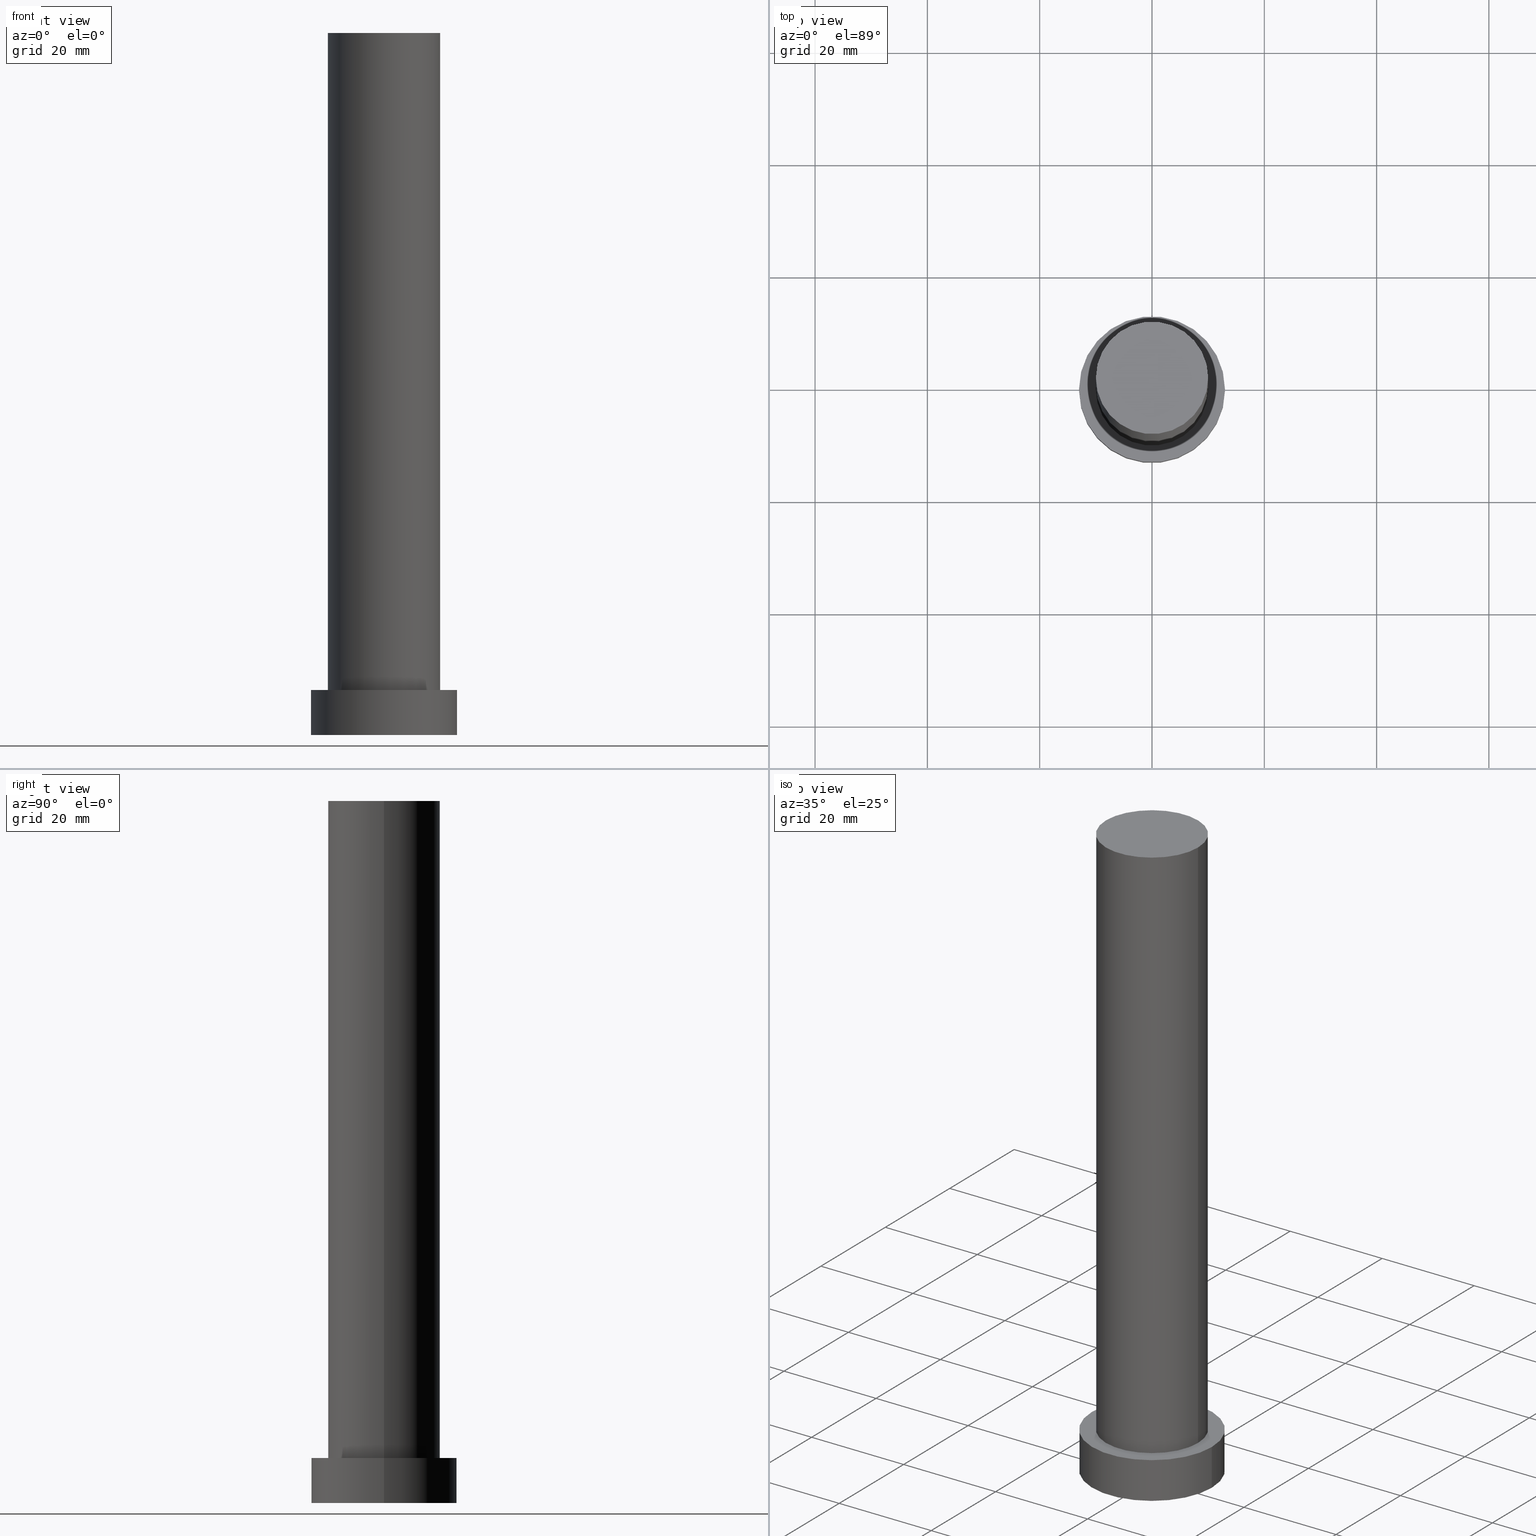
[diagram: canonical four-view strip — front | top / right | iso, engineering-drawing reading convention]
A machine part, canonical four-view strip (front | top / right | iso — engineering-drawing reading convention). The complete STEP part file that produces these views, byte-faithful:
ISO-10303-21;
HEADER;
FILE_DESCRIPTION (( 'STEP AP203' ),
    '1' );
FILE_NAME ('12a2.STEP',
    '2023-02-13T07:54:47',
    ( '' ),
    ( '' ),
    'SwSTEP 2.0',
    'SolidWorks 2019',
    '' );
FILE_SCHEMA (( 'CONFIG_CONTROL_DESIGN' ));
ENDSEC;

DATA;
#1 = DESIGN_CONTEXT ( 'detailed design', #151, 'design' ) ;
#2 = EDGE_LOOP ( 'NONE', ( #243, #43, #219, #7 ) ) ;
#3 = ORIENTED_EDGE ( 'NONE', *, *, #84, .F. ) ;
#4 = ADVANCED_FACE ( 'NONE', ( #33 ), #31, .T. ) ;
#5 = ORIENTED_EDGE ( 'NONE', *, *, #227, .F. ) ;
#6 = PERSON_AND_ORGANIZATION_ROLE ( 'design_owner' ) ;
#7 = ORIENTED_EDGE ( 'NONE', *, *, #84, .T. ) ;
#8 =( LENGTH_UNIT ( ) NAMED_UNIT ( * ) SI_UNIT ( .MILLI., .METRE. ) );
#9 = ORIENTED_EDGE ( 'NONE', *, *, #56, .T. ) ;
#10 = PRODUCT_DEFINITION_SHAPE ( 'NONE', 'NONE',  #107 ) ;
#11 = PERSON_AND_ORGANIZATION ( #209, #115 ) ;
#12 = FACE_OUTER_BOUND ( 'NONE', #187, .T. ) ;
#13 = CARTESIAN_POINT ( 'NONE',  ( 13.00000000000000178, 1.592040838891559293E-15, 0.000000000000000000 ) ) ;
#14 = DIRECTION ( 'NONE',  ( 0.000000000000000000, 0.000000000000000000, 1.000000000000000000 ) ) ;
#15 = PERSON_AND_ORGANIZATION ( #209, #115 ) ;
#16 = CC_DESIGN_PERSON_AND_ORGANIZATION_ASSIGNMENT ( #130, #109, ( #107 ) ) ;
#17 = DIRECTION ( 'NONE',  ( -0.000000000000000000, -0.000000000000000000, -1.000000000000000000 ) ) ;
#18 = PERSON_AND_ORGANIZATION ( #209, #115 ) ;
#19 = LINE ( 'NONE', #158, #231 ) ;
#20 = LOCAL_TIME ( 8, 54, 47.00000000000000000, #210 ) ;
#21 = AXIS2_PLACEMENT_3D ( 'NONE', #189, #32, #233 ) ;
#22 = EDGE_LOOP ( 'NONE', ( #238, #144, #9, #126 ) ) ;
#23 = AXIS2_PLACEMENT_3D ( 'NONE', #95, #14, #205 ) ;
#24 = ORIENTED_EDGE ( 'NONE', *, *, #117, .F. ) ;
#25 = ORIENTED_EDGE ( 'NONE', *, *, #227, .T. ) ;
#26 = CALENDAR_DATE ( 2023, 13, 2 ) ;
#27 = VERTEX_POINT ( 'NONE', #114 ) ;
#28 =( GEOMETRIC_REPRESENTATION_CONTEXT ( 3 ) GLOBAL_UNCERTAINTY_ASSIGNED_CONTEXT ( ( #103 ) ) GLOBAL_UNIT_ASSIGNED_CONTEXT ( ( #8, #172, #199 ) ) REPRESENTATION_CONTEXT ( 'NONE', 'WORKASPACE' ) );
#29 = CARTESIAN_POINT ( 'NONE',  ( 0.000000000000000000, 0.000000000000000000, 125.0000000000000000 ) ) ;
#30 = APPROVAL ( #190, 'NEUR�EN�' ) ;
#31 = CYLINDRICAL_SURFACE ( 'NONE', #170, 13.00000000000000178 ) ;
#32 = DIRECTION ( 'NONE',  ( 0.000000000000000000, 0.000000000000000000, 1.000000000000000000 ) ) ;
#33 = FACE_OUTER_BOUND ( 'NONE', #22, .T. ) ;
#34 = CC_DESIGN_APPROVAL ( #48, ( #122 ) ) ;
#35 = EDGE_CURVE ( 'NONE', #200, #111, #133, .T. ) ;
#36 = DIRECTION ( 'NONE',  ( 1.000000000000000000, 0.000000000000000000, 0.000000000000000000 ) ) ;
#37 = FACE_OUTER_BOUND ( 'NONE', #63, .T. ) ;
#38 = LINE ( 'NONE', #244, #179 ) ;
#39 = AXIS2_PLACEMENT_3D ( 'NONE', #97, #177, #254 ) ;
#40 = CIRCLE ( 'NONE', #248, 10.00000000000000000 ) ;
#41 = CC_DESIGN_DATE_AND_TIME_ASSIGNMENT ( #101, #161, ( #51 ) ) ;
#42 = VERTEX_POINT ( 'NONE', #169 ) ;
#43 = ORIENTED_EDGE ( 'NONE', *, *, #78, .F. ) ;
#44 = ADVANCED_BREP_SHAPE_REPRESENTATION ( '12a2', ( #79, #59 ), #28 ) ;
#45 = ORIENTED_EDGE ( 'NONE', *, *, #78, .T. ) ;
#46 = DATE_AND_TIME ( #221, #91 ) ;
#47 = CIRCLE ( 'NONE', #223, 13.00000000000000178 ) ;
#48 = APPROVAL ( #86, 'NEUR�EN�' ) ;
#49 = PERSON_AND_ORGANIZATION ( #209, #115 ) ;
#50 = DIRECTION ( 'NONE',  ( 0.000000000000000000, 0.000000000000000000, 1.000000000000000000 ) ) ;
#51 = SECURITY_CLASSIFICATION ( '', '', #156 ) ;
#52 = CALENDAR_DATE ( 2023, 13, 2 ) ;
#53 = CARTESIAN_POINT ( 'NONE',  ( 13.00000000000000178, 1.592040838891559293E-15, 8.000000000000000000 ) ) ;
#54 = DIRECTION ( 'NONE',  ( -1.000000000000000000, 0.000000000000000000, 0.000000000000000000 ) ) ;
#55 = FACE_BOUND ( 'NONE', #216, .T. ) ;
#56 = EDGE_CURVE ( 'NONE', #143, #42, #38, .T. ) ;
#57 = DIRECTION ( 'NONE',  ( 0.000000000000000000, 0.000000000000000000, 1.000000000000000000 ) ) ;
#58 = ORIENTED_EDGE ( 'NONE', *, *, #98, .T. ) ;
#59 = AXIS2_PLACEMENT_3D ( 'NONE', #112, #57, #137 ) ;
#60 = DIRECTION ( 'NONE',  ( 0.000000000000000000, 0.000000000000000000, 1.000000000000000000 ) ) ;
#61 = AXIS2_PLACEMENT_3D ( 'NONE', #191, #131, #175 ) ;
#62 = CC_DESIGN_DATE_AND_TIME_ASSIGNMENT ( #224, #184, ( #107 ) ) ;
#63 = EDGE_LOOP ( 'NONE', ( #162, #181 ) ) ;
#64 = VERTEX_POINT ( 'NONE', #204 ) ;
#65 = CC_DESIGN_SECURITY_CLASSIFICATION ( #51, ( #122 ) ) ;
#66 = CIRCLE ( 'NONE', #206, 10.00000000000000000 ) ;
#67 = ORIENTED_EDGE ( 'NONE', *, *, #194, .F. ) ;
#68 = APPLICATION_PROTOCOL_DEFINITION ( 'international standard', 'config_control_design', 1994, #151 ) ;
#69 = DIRECTION ( 'NONE',  ( -1.000000000000000000, 0.000000000000000000, 0.000000000000000000 ) ) ;
#70 = APPROVAL_ROLE ( '' ) ;
#71 = CARTESIAN_POINT ( 'NONE',  ( 0.000000000000000000, 0.000000000000000000, 8.000000000000000000 ) ) ;
#72 = DIRECTION ( 'NONE',  ( 1.000000000000000000, 0.000000000000000000, -0.000000000000000000 ) ) ;
#73 = DIRECTION ( 'NONE',  ( -0.000000000000000000, -0.000000000000000000, -1.000000000000000000 ) ) ;
#74 = LINE ( 'NONE', #157, #241 ) ;
#75 = APPROVAL_DATE_TIME ( #80, #30 ) ;
#76 = DIRECTION ( 'NONE',  ( -1.000000000000000000, 0.000000000000000000, 0.000000000000000000 ) ) ;
#77 = DIRECTION ( 'NONE',  ( -0.000000000000000000, -0.000000000000000000, -1.000000000000000000 ) ) ;
#78 = EDGE_CURVE ( 'NONE', #64, #218, #66, .T. ) ;
#79 = MANIFOLD_SOLID_BREP ( 'P�idat vysunut�m3', #141 ) ;
#80 = DATE_AND_TIME ( #94, #237 ) ;
#81 = ORIENTED_EDGE ( 'NONE', *, *, #35, .T. ) ;
#82 = CARTESIAN_POINT ( 'NONE',  ( 0.000000000000000000, 0.000000000000000000, 125.0000000000000000 ) ) ;
#83 = AXIS2_PLACEMENT_3D ( 'NONE', #90, #73, #76 ) ;
#84 = EDGE_CURVE ( 'NONE', #104, #27, #240, .T. ) ;
#85 = CARTESIAN_POINT ( 'NONE',  ( 13.00000000000000178, 1.592040838891559293E-15, 8.000000000000000000 ) ) ;
#86 = APPROVAL_STATUS ( 'not_yet_approved' ) ;
#87 = CYLINDRICAL_SURFACE ( 'NONE', #83, 10.00000000000000000 ) ;
#88 = PRODUCT_RELATED_PRODUCT_CATEGORY ( 'detail', '', ( #110 ) ) ;
#89 = DIRECTION ( 'NONE',  ( -0.000000000000000000, -0.000000000000000000, -1.000000000000000000 ) ) ;
#90 = CARTESIAN_POINT ( 'NONE',  ( 0.000000000000000000, 0.000000000000000000, 125.0000000000000000 ) ) ;
#91 = LOCAL_TIME ( 8, 54, 47.00000000000000000, #186 ) ;
#92 = VECTOR ( 'NONE', #202, 1000.000000000000000 ) ;
#93 = FACE_OUTER_BOUND ( 'NONE', #128, .T. ) ;
#94 = CALENDAR_DATE ( 2023, 13, 2 ) ;
#95 = CARTESIAN_POINT ( 'NONE',  ( 0.000000000000000000, 0.000000000000000000, 0.000000000000000000 ) ) ;
#96 = COORDINATED_UNIVERSAL_TIME_OFFSET ( 1, 0, .AHEAD. ) ;
#97 = CARTESIAN_POINT ( 'NONE',  ( 0.000000000000000000, 0.000000000000000000, 0.000000000000000000 ) ) ;
#98 = EDGE_CURVE ( 'NONE', #218, #64, #40, .T. ) ;
#99 = SHAPE_DEFINITION_REPRESENTATION ( #10, #44 ) ;
#100 = ADVANCED_FACE ( 'NONE', ( #12 ), #192, .F. ) ;
#101 = DATE_AND_TIME ( #255, #20 ) ;
#102 = CIRCLE ( 'NONE', #123, 13.00000000000000178 ) ;
#103 = UNCERTAINTY_MEASURE_WITH_UNIT (LENGTH_MEASURE( 1.000000000000000082E-05 ), #8, 'distance_accuracy_value', 'NONE');
#104 = VERTEX_POINT ( 'NONE', #136 ) ;
#105 = ORIENTED_EDGE ( 'NONE', *, *, #213, .T. ) ;
#106 = ORIENTED_EDGE ( 'NONE', *, *, #182, .T. ) ;
#107 = PRODUCT_DEFINITION ( 'NEZN�M�', '', #122, #1 ) ;
#108 = DIRECTION ( 'NONE',  ( 0.000000000000000000, 0.000000000000000000, 1.000000000000000000 ) ) ;
#109 = PERSON_AND_ORGANIZATION_ROLE ( 'creator' ) ;
#110 = PRODUCT ( '12a2', '12a2', '', ( #232 ) ) ;
#111 = VERTEX_POINT ( 'NONE', #13 ) ;
#112 = CARTESIAN_POINT ( 'NONE',  ( 0.000000000000000000, 0.000000000000000000, 0.000000000000000000 ) ) ;
#113 = CARTESIAN_POINT ( 'NONE',  ( 0.000000000000000000, 0.000000000000000000, 8.000000000000000000 ) ) ;
#114 = CARTESIAN_POINT ( 'NONE',  ( 10.00000000000000000, 1.224646799147353256E-15, 8.000000000000000000 ) ) ;
#115 = ORGANIZATION ( 'NEUR�EN�', 'NEUR�EN�', '' ) ;
#116 = PLANE ( 'NONE',  #61 ) ;
#117 = EDGE_CURVE ( 'NONE', #64, #104, #74, .T. ) ;
#118 = DIRECTION ( 'NONE',  ( 1.000000000000000000, 0.000000000000000000, 0.000000000000000000 ) ) ;
#119 = PERSON_AND_ORGANIZATION_ROLE ( 'classification_officer' ) ;
#120 = APPROVAL ( #146, 'NEUR�EN�' ) ;
#121 = AXIS2_PLACEMENT_3D ( 'NONE', #29, #108, #72 ) ;
#122 = PRODUCT_DEFINITION_FORMATION_WITH_SPECIFIED_SOURCE ( 'LIBOVOLN�', '', #110, .NOT_KNOWN. ) ;
#123 = AXIS2_PLACEMENT_3D ( 'NONE', #71, #50, #230 ) ;
#124 = ADVANCED_FACE ( 'NONE', ( #171 ), #87, .T. ) ;
#125 = APPLICATION_CONTEXT ( 'configuration controlled 3d designs of mechanical parts and assemblies' ) ;
#126 = ORIENTED_EDGE ( 'NONE', *, *, #215, .T. ) ;
#127 = CC_DESIGN_APPROVAL ( #30, ( #51 ) ) ;
#128 = EDGE_LOOP ( 'NONE', ( #67, #81, #25, #222 ) ) ;
#129 = COORDINATED_UNIVERSAL_TIME_OFFSET ( 1, 0, .AHEAD. ) ;
#130 = PERSON_AND_ORGANIZATION ( #209, #115 ) ;
#131 = DIRECTION ( 'NONE',  ( 0.000000000000000000, 0.000000000000000000, 1.000000000000000000 ) ) ;
#132 = DATE_AND_TIME ( #52, #176 ) ;
#133 = LINE ( 'NONE', #85, #92 ) ;
#134 = CIRCLE ( 'NONE', #39, 13.00000000000000178 ) ;
#135 = PLANE ( 'NONE',  #121 ) ;
#136 = CARTESIAN_POINT ( 'NONE',  ( -10.00000000000000000, 0.000000000000000000, 8.000000000000000000 ) ) ;
#137 = DIRECTION ( 'NONE',  ( 1.000000000000000000, 0.000000000000000000, 0.000000000000000000 ) ) ;
#138 = CARTESIAN_POINT ( 'NONE',  ( 0.000000000000000000, 0.000000000000000000, 125.0000000000000000 ) ) ;
#139 = DIRECTION ( 'NONE',  ( 1.000000000000000000, 0.000000000000000000, 0.000000000000000000 ) ) ;
#140 = ADVANCED_FACE ( 'NONE', ( #93 ), #154, .T. ) ;
#141 = CLOSED_SHELL ( 'NONE', ( #249, #140, #4, #180, #100, #124, #217 ) ) ;
#142 = PERSON_AND_ORGANIZATION_ROLE ( 'creator' ) ;
#143 = VERTEX_POINT ( 'NONE', #225 ) ;
#144 = ORIENTED_EDGE ( 'NONE', *, *, #167, .F. ) ;
#145 = ORIENTED_EDGE ( 'NONE', *, *, #182, .F. ) ;
#146 = APPROVAL_STATUS ( 'not_yet_approved' ) ;
#147 = PERSON_AND_ORGANIZATION ( #209, #115 ) ;
#148 = DIRECTION ( 'NONE',  ( 0.000000000000000000, 0.000000000000000000, 1.000000000000000000 ) ) ;
#149 = CARTESIAN_POINT ( 'NONE',  ( 0.000000000000000000, 0.000000000000000000, 0.000000000000000000 ) ) ;
#150 = DIRECTION ( 'NONE',  ( 0.000000000000000000, 0.000000000000000000, 1.000000000000000000 ) ) ;
#151 = APPLICATION_CONTEXT ( 'configuration controlled 3d designs of mechanical parts and assemblies' ) ;
#152 = FACE_OUTER_BOUND ( 'NONE', #239, .T. ) ;
#153 = CARTESIAN_POINT ( 'NONE',  ( 0.000000000000000000, 0.000000000000000000, 8.000000000000000000 ) ) ;
#154 = CYLINDRICAL_SURFACE ( 'NONE', #234, 13.00000000000000178 ) ;
#155 = CC_DESIGN_PERSON_AND_ORGANIZATION_ASSIGNMENT ( #147, #6, ( #110 ) ) ;
#156 = SECURITY_CLASSIFICATION_LEVEL ( 'unclassified' ) ;
#157 = CARTESIAN_POINT ( 'NONE',  ( -10.00000000000000000, 0.000000000000000000, 125.0000000000000000 ) ) ;
#158 = CARTESIAN_POINT ( 'NONE',  ( 10.00000000000000000, 1.224646799147353256E-15, 125.0000000000000000 ) ) ;
#159 = CC_DESIGN_PERSON_AND_ORGANIZATION_ASSIGNMENT ( #18, #193, ( #122 ) ) ;
#160 = AXIS2_PLACEMENT_3D ( 'NONE', #149, #207, #36 ) ;
#161 = DATE_TIME_ROLE ( 'classification_date' ) ;
#162 = ORIENTED_EDGE ( 'NONE', *, *, #167, .T. ) ;
#163 = LOCAL_TIME ( 8, 54, 47.00000000000000000, #129 ) ;
#164 = ORIENTED_EDGE ( 'NONE', *, *, #215, .F. ) ;
#165 = CARTESIAN_POINT ( 'NONE',  ( 10.00000000000000000, 1.224646799147353256E-15, 125.0000000000000000 ) ) ;
#166 = DIRECTION ( 'NONE',  ( -0.000000000000000000, -0.000000000000000000, -1.000000000000000000 ) ) ;
#167 = EDGE_CURVE ( 'NONE', #143, #200, #102, .T. ) ;
#168 = APPROVAL_ROLE ( '' ) ;
#169 = CARTESIAN_POINT ( 'NONE',  ( -13.00000000000000178, 0.000000000000000000, 0.000000000000000000 ) ) ;
#170 = AXIS2_PLACEMENT_3D ( 'NONE', #113, #166, #69 ) ;
#171 = FACE_OUTER_BOUND ( 'NONE', #2, .T. ) ;
#172 =( NAMED_UNIT ( * ) PLANE_ANGLE_UNIT ( ) SI_UNIT ( $, .RADIAN. ) );
#173 = DIRECTION ( 'NONE',  ( 1.000000000000000000, 0.000000000000000000, 0.000000000000000000 ) ) ;
#174 = APPROVAL_ROLE ( '' ) ;
#175 = DIRECTION ( 'NONE',  ( 1.000000000000000000, 0.000000000000000000, -0.000000000000000000 ) ) ;
#176 = LOCAL_TIME ( 8, 54, 47.00000000000000000, #226 ) ;
#177 = DIRECTION ( 'NONE',  ( 0.000000000000000000, 0.000000000000000000, 1.000000000000000000 ) ) ;
#178 = PERSON_AND_ORGANIZATION ( #209, #115 ) ;
#179 = VECTOR ( 'NONE', #17, 1000.000000000000000 ) ;
#180 = ADVANCED_FACE ( 'NONE', ( #55, #37 ), #116, .T. ) ;
#181 = ORIENTED_EDGE ( 'NONE', *, *, #194, .T. ) ;
#182 = EDGE_CURVE ( 'NONE', #27, #104, #196, .T. ) ;
#183 = CIRCLE ( 'NONE', #160, 13.00000000000000178 ) ;
#184 = DATE_TIME_ROLE ( 'creation_date' ) ;
#185 = EDGE_LOOP ( 'NONE', ( #198, #105, #106, #24 ) ) ;
#186 = COORDINATED_UNIVERSAL_TIME_OFFSET ( 1, 0, .AHEAD. ) ;
#187 = EDGE_LOOP ( 'NONE', ( #164, #5 ) ) ;
#188 = AXIS2_PLACEMENT_3D ( 'NONE', #82, #89, #54 ) ;
#189 = CARTESIAN_POINT ( 'NONE',  ( 0.000000000000000000, 0.000000000000000000, 8.000000000000000000 ) ) ;
#190 = APPROVAL_STATUS ( 'not_yet_approved' ) ;
#191 = CARTESIAN_POINT ( 'NONE',  ( 0.000000000000000000, 0.000000000000000000, 8.000000000000000000 ) ) ;
#192 = PLANE ( 'NONE',  #23 ) ;
#193 = PERSON_AND_ORGANIZATION_ROLE ( 'design_supplier' ) ;
#194 = EDGE_CURVE ( 'NONE', #200, #143, #47, .T. ) ;
#195 = APPROVAL_PERSON_ORGANIZATION ( #49, #120, #70 ) ;
#196 = CIRCLE ( 'NONE', #236, 10.00000000000000000 ) ;
#197 = CC_DESIGN_PERSON_AND_ORGANIZATION_ASSIGNMENT ( #212, #119, ( #51 ) ) ;
#198 = ORIENTED_EDGE ( 'NONE', *, *, #98, .F. ) ;
#199 =( NAMED_UNIT ( * ) SI_UNIT ( $, .STERADIAN. ) SOLID_ANGLE_UNIT ( ) );
#200 = VERTEX_POINT ( 'NONE', #53 ) ;
#201 = FACE_OUTER_BOUND ( 'NONE', #185, .T. ) ;
#202 = DIRECTION ( 'NONE',  ( -0.000000000000000000, -0.000000000000000000, -1.000000000000000000 ) ) ;
#203 = APPROVAL_DATE_TIME ( #132, #48 ) ;
#204 = CARTESIAN_POINT ( 'NONE',  ( -10.00000000000000000, 0.000000000000000000, 125.0000000000000000 ) ) ;
#205 = DIRECTION ( 'NONE',  ( 1.000000000000000000, 0.000000000000000000, -0.000000000000000000 ) ) ;
#206 = AXIS2_PLACEMENT_3D ( 'NONE', #138, #148, #173 ) ;
#207 = DIRECTION ( 'NONE',  ( 0.000000000000000000, 0.000000000000000000, 1.000000000000000000 ) ) ;
#208 = DIRECTION ( 'NONE',  ( -0.000000000000000000, -0.000000000000000000, -1.000000000000000000 ) ) ;
#209 = PERSON ( 'NEUR�EN�', 'NEUR�EN�', 'NEUR�EN�', ('NEUR�EN�'), ('NEUR�EN�'), ('NEUR�EN�') ) ;
#210 = COORDINATED_UNIVERSAL_TIME_OFFSET ( 1, 0, .AHEAD. ) ;
#211 = CARTESIAN_POINT ( 'NONE',  ( 0.000000000000000000, 0.000000000000000000, 8.000000000000000000 ) ) ;
#212 = PERSON_AND_ORGANIZATION ( #209, #115 ) ;
#213 = EDGE_CURVE ( 'NONE', #218, #27, #19, .T. ) ;
#214 = APPROVAL_PERSON_ORGANIZATION ( #178, #30, #174 ) ;
#215 = EDGE_CURVE ( 'NONE', #42, #111, #134, .T. ) ;
#216 = EDGE_LOOP ( 'NONE', ( #3, #145 ) ) ;
#217 = ADVANCED_FACE ( 'NONE', ( #152 ), #135, .T. ) ;
#218 = VERTEX_POINT ( 'NONE', #165 ) ;
#219 = ORIENTED_EDGE ( 'NONE', *, *, #117, .T. ) ;
#220 = CC_DESIGN_PERSON_AND_ORGANIZATION_ASSIGNMENT ( #15, #142, ( #122 ) ) ;
#221 = CALENDAR_DATE ( 2023, 13, 2 ) ;
#222 = ORIENTED_EDGE ( 'NONE', *, *, #56, .F. ) ;
#223 = AXIS2_PLACEMENT_3D ( 'NONE', #211, #150, #228 ) ;
#224 = DATE_AND_TIME ( #26, #163 ) ;
#225 = CARTESIAN_POINT ( 'NONE',  ( -13.00000000000000178, 0.000000000000000000, 8.000000000000000000 ) ) ;
#226 = COORDINATED_UNIVERSAL_TIME_OFFSET ( 1, 0, .AHEAD. ) ;
#227 = EDGE_CURVE ( 'NONE', #111, #42, #183, .T. ) ;
#228 = DIRECTION ( 'NONE',  ( 1.000000000000000000, 0.000000000000000000, 0.000000000000000000 ) ) ;
#229 = CYLINDRICAL_SURFACE ( 'NONE', #188, 10.00000000000000000 ) ;
#230 = DIRECTION ( 'NONE',  ( 1.000000000000000000, 0.000000000000000000, 0.000000000000000000 ) ) ;
#231 = VECTOR ( 'NONE', #77, 1000.000000000000000 ) ;
#232 = MECHANICAL_CONTEXT ( 'NONE', #125, 'mechanical' ) ;
#233 = DIRECTION ( 'NONE',  ( 1.000000000000000000, 0.000000000000000000, 0.000000000000000000 ) ) ;
#234 = AXIS2_PLACEMENT_3D ( 'NONE', #153, #208, #246 ) ;
#235 = CARTESIAN_POINT ( 'NONE',  ( 0.000000000000000000, 0.000000000000000000, 125.0000000000000000 ) ) ;
#236 = AXIS2_PLACEMENT_3D ( 'NONE', #252, #60, #139 ) ;
#237 = LOCAL_TIME ( 8, 54, 47.00000000000000000, #96 ) ;
#238 = ORIENTED_EDGE ( 'NONE', *, *, #35, .F. ) ;
#239 = EDGE_LOOP ( 'NONE', ( #45, #58 ) ) ;
#240 = CIRCLE ( 'NONE', #21, 10.00000000000000000 ) ;
#241 = VECTOR ( 'NONE', #251, 1000.000000000000000 ) ;
#242 = APPLICATION_PROTOCOL_DEFINITION ( 'international standard', 'config_control_design', 1994, #125 ) ;
#243 = ORIENTED_EDGE ( 'NONE', *, *, #213, .F. ) ;
#244 = CARTESIAN_POINT ( 'NONE',  ( -13.00000000000000178, 0.000000000000000000, 8.000000000000000000 ) ) ;
#245 = APPROVAL_DATE_TIME ( #46, #120 ) ;
#246 = DIRECTION ( 'NONE',  ( -1.000000000000000000, 0.000000000000000000, 0.000000000000000000 ) ) ;
#247 = APPROVAL_PERSON_ORGANIZATION ( #11, #48, #168 ) ;
#248 = AXIS2_PLACEMENT_3D ( 'NONE', #235, #250, #118 ) ;
#249 = ADVANCED_FACE ( 'NONE', ( #201 ), #229, .T. ) ;
#250 = DIRECTION ( 'NONE',  ( 0.000000000000000000, 0.000000000000000000, 1.000000000000000000 ) ) ;
#251 = DIRECTION ( 'NONE',  ( -0.000000000000000000, -0.000000000000000000, -1.000000000000000000 ) ) ;
#252 = CARTESIAN_POINT ( 'NONE',  ( 0.000000000000000000, 0.000000000000000000, 8.000000000000000000 ) ) ;
#253 = CC_DESIGN_APPROVAL ( #120, ( #107 ) ) ;
#254 = DIRECTION ( 'NONE',  ( 1.000000000000000000, 0.000000000000000000, 0.000000000000000000 ) ) ;
#255 = CALENDAR_DATE ( 2023, 13, 2 ) ;
ENDSEC;
END-ISO-10303-21;
